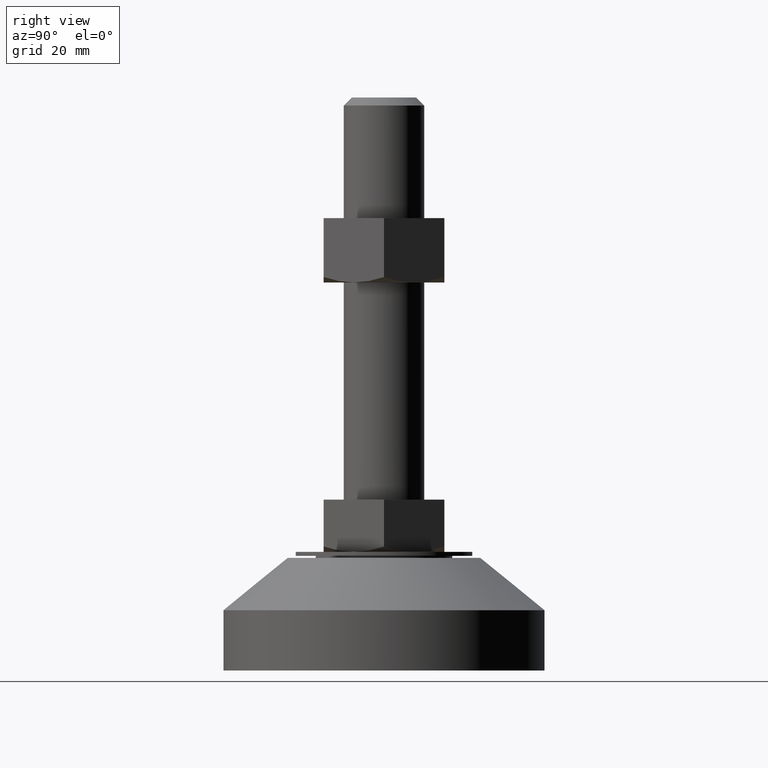
[diagram: clean part render]
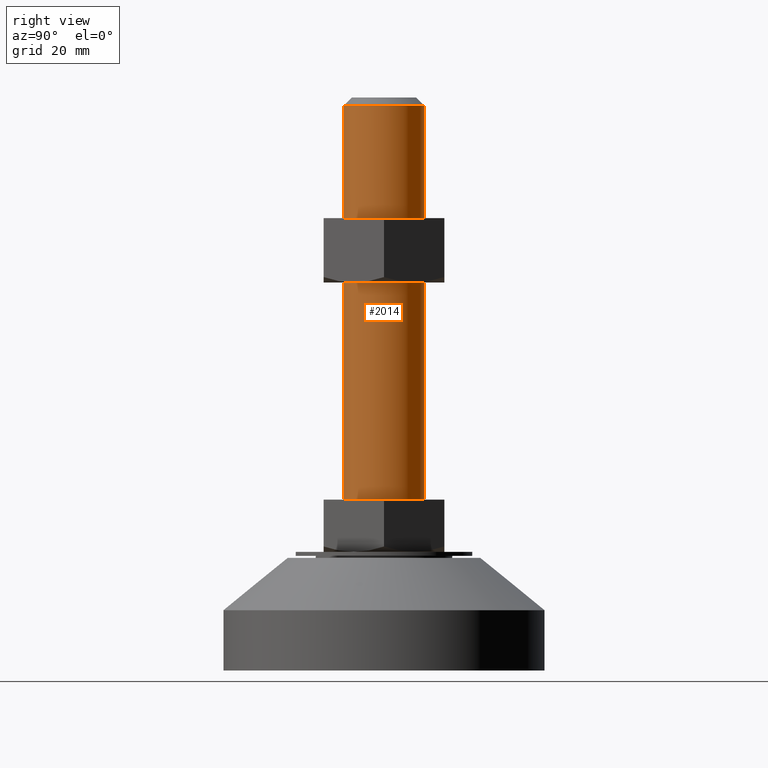
[diagram: same view with one face highlighted and labeled with its STEP entity id]
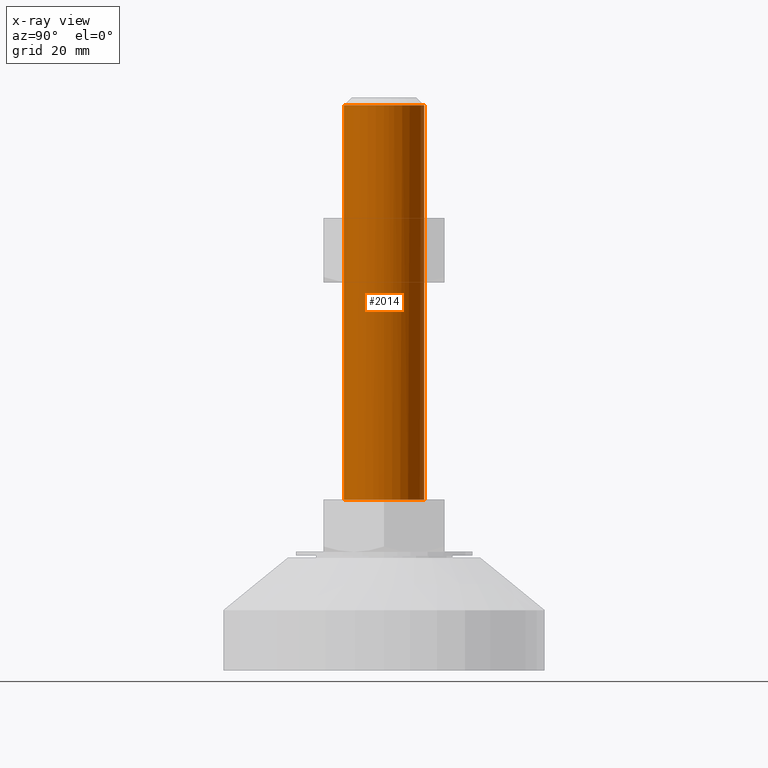
[diagram: x-ray of the same camera — body ghosted, the highlighted face saturated]
A machine part, right view. The second image highlights one B-rep face of the part: STEP entity #2014.
The next image is the same camera in x-ray: the body ghosted, the highlighted face saturated — about 0% of this face is hidden behind the body in this view.
In plain terms, the highlighted face is a freeform B-spline surface patch.
Its self-contained STEP definition (entity closure, byte-faithful):
#1631=CARTESIAN_POINT('',(0.087265355361049,9.999619230682850,140.499999999911610));
#1632=VERTEX_POINT('',#1631);
#1647=CARTESIAN_POINT('',(0.610485396043209,-9.981347984268403,140.499999999908510));
#1648=VERTEX_POINT('',#1647);
#1654=CARTESIAN_POINT('',(10.000000000000570,0.0,140.500000000000000));
#1655=VERTEX_POINT('',#1654);
#1656=CARTESIAN_POINT('',(10.000000000000570,0.0,140.500000000000000));
#1657=CARTESIAN_POINT('',(10.000000000003370,-9.407060668452559,140.499999999954210));
#1658=CARTESIAN_POINT('',(0.610485396043209,-9.981347984268403,140.499999999908540));
#1666=(BOUNDED_CURVE()B_SPLINE_CURVE(2,(#1656,#1657,#1658),.UNSPECIFIED.,.F.,.U.)B_SPLINE_CURVE_WITH_KNOTS((3,3),(0.500000000000000,0.739332962230058),.UNSPECIFIED.)CURVE()GEOMETRIC_REPRESENTATION_ITEM()RATIONAL_B_SPLINE_CURVE((1.0,0.719603993297120,0.976072041647675))REPRESENTATION_ITEM(''));
#1667=EDGE_CURVE('',#1655,#1648,#1666,.T.);
#1669=CARTESIAN_POINT('',(0.087265355361049,9.999619230682850,140.499999999911550));
#1670=CARTESIAN_POINT('',(9.999999999997780,9.913112105590999,140.499999999957340));
#1671=CARTESIAN_POINT('',(10.000000000000570,0.0,140.500000000000000));
#1679=(BOUNDED_CURVE()B_SPLINE_CURVE(2,(#1669,#1670,#1671),.UNSPECIFIED.,.F.,.U.)B_SPLINE_CURVE_WITH_KNOTS((3,3),(0.251539894341735,0.500000000000000),.UNSPECIFIED.)CURVE()GEOMETRIC_REPRESENTATION_ITEM()RATIONAL_B_SPLINE_CURVE((0.996414028084790,0.708910879628081,1.0))REPRESENTATION_ITEM(''));
#1680=EDGE_CURVE('',#1632,#1655,#1679,.T.);
#1718=CARTESIAN_POINT('',(-0.087265355361019,-9.999619230682850,140.499999999911610));
#1719=VERTEX_POINT('',#1718);
#1733=CARTESIAN_POINT('',(0.610485396043209,-9.981347984268403,140.499999999908510));
#1734=CARTESIAN_POINT('',(0.378209774889750,-9.995555270042422,140.499999999909900));
#1735=CARTESIAN_POINT('',(0.145435294395606,-10.001650923376630,140.499999999910100));
#1736=CARTESIAN_POINT('',(-0.087265355361019,-9.999619230682850,140.499999999911610));
#1737=B_SPLINE_CURVE_WITH_KNOTS('',3,(#1733,#1734,#1735,#1736),.UNSPECIFIED.,.F.,.U.,(4,4),(1.108739E-010,0.698133917028966),.UNSPECIFIED.);
#1738=EDGE_CURVE('',#1648,#1719,#1737,.T.);
#1947=CARTESIAN_POINT('',(0.087265354983754,9.999619230641850,142.950000000000100));
#1948=CARTESIAN_POINT('',(10.086884585625604,9.912353875658109,142.950000000000020));
#1949=CARTESIAN_POINT('',(9.999619230641864,-0.087265354983740,142.950000000000100));
#1950=CARTESIAN_POINT('',(9.912353875658123,-10.086884585625590,142.950000000000020));
#1951=CARTESIAN_POINT('',(-0.087265354983726,-9.999619230641850,142.950000000000100));
#1952=CARTESIAN_POINT('',(0.087265354983754,9.999619230641850,39.988750000000003));
#1953=CARTESIAN_POINT('',(10.086884585625604,9.912353875658109,39.988749999999996));
#1954=CARTESIAN_POINT('',(9.999619230641864,-0.087265354983740,39.988750000000003));
#1955=CARTESIAN_POINT('',(9.912353875658123,-10.086884585625590,39.988749999999996));
#1956=CARTESIAN_POINT('',(-0.087265354983726,-9.999619230641850,39.988750000000003));
#1964=(BOUNDED_SURFACE()B_SPLINE_SURFACE(2,1,((#1947,#1952),(#1948,#1953),(#1949,#1954),(#1950,#1955),(#1951,#1956)),.UNSPECIFIED.,.F.,.F.,.U.)B_SPLINE_SURFACE_WITH_KNOTS((3,2,3),(2,2),(0.0,16.568542494924031,33.137084989848063),(0.0,102.961250000000110),.UNSPECIFIED.)GEOMETRIC_REPRESENTATION_ITEM()RATIONAL_B_SPLINE_SURFACE(((1.0,1.0),(0.707106781186548,0.707106781186548),(1.0,1.0),(0.707106781186548,0.707106781186548),(1.0,1.0)))REPRESENTATION_ITEM('')SURFACE());
#1965=ORIENTED_EDGE('',*,*,#1680,.T.);
#1966=ORIENTED_EDGE('',*,*,#1667,.T.);
#1967=ORIENTED_EDGE('',*,*,#1738,.T.);
#1968=CARTESIAN_POINT('',(-0.087265355184743,-9.999619230640096,42.500000000000000));
#1969=VERTEX_POINT('',#1968);
#1970=CARTESIAN_POINT('',(-0.087265355361019,-9.999619230682850,140.499999999911610));
#1971=CARTESIAN_POINT('',(-0.087265355184743,-9.999619230640096,42.500000000000000));
#1972=QUASI_UNIFORM_CURVE('',1,(#1970,#1971),.UNSPECIFIED.,.F.,.U.);
#1973=EDGE_CURVE('',#1719,#1969,#1972,.T.);
#1974=ORIENTED_EDGE('',*,*,#1973,.T.);
#1975=CARTESIAN_POINT('',(10.000000000000160,0.0,42.500000000000000));
#1976=VERTEX_POINT('',#1975);
#1977=CARTESIAN_POINT('',(-0.087265355184747,-9.999619230640100,42.500000000000000));
#1978=CARTESIAN_POINT('',(-0.043633508307518,-10.000000000000140,42.500000000000000));
#1979=CARTESIAN_POINT('',(1.421085E-014,-10.000000000000140,42.500000000000000));
#1980=CARTESIAN_POINT('',(10.000000000000155,-10.000000000000140,42.500000000000000));
#1981=CARTESIAN_POINT('',(10.000000000000160,0.0,42.500000000000000));
#1989=(BOUNDED_CURVE()B_SPLINE_CURVE(2,(#1977,#1978,#1979,#1980,#1981),.UNSPECIFIED.,.F.,.U.)B_SPLINE_CURVE_WITH_KNOTS((3,2,3),(0.748460105661472,0.750000000000000,1.0),.UNSPECIFIED.)CURVE()GEOMETRIC_REPRESENTATION_ITEM()RATIONAL_B_SPLINE_CURVE((0.996414028092211,0.998195901562224,1.0,0.707106781186548,1.0))REPRESENTATION_ITEM(''));
#1990=EDGE_CURVE('',#1969,#1976,#1989,.T.);
#1991=ORIENTED_EDGE('',*,*,#1990,.T.);
#1992=CARTESIAN_POINT('',(0.087265355184772,9.999619230640096,42.500000000000000));
#1993=VERTEX_POINT('',#1992);
#1994=CARTESIAN_POINT('',(10.000000000000160,0.0,42.500000000000000));
#1995=CARTESIAN_POINT('',(10.000000000000155,9.913112105750633,42.500000000000000));
#1996=CARTESIAN_POINT('',(0.087265355184773,9.999619230640096,42.499999999999993));
#2004=(BOUNDED_CURVE()B_SPLINE_CURVE(2,(#1994,#1995,#1996),.UNSPECIFIED.,.F.,.U.)B_SPLINE_CURVE_WITH_KNOTS((3,3),(0.0,0.248460105661472),.UNSPECIFIED.)CURVE()GEOMETRIC_REPRESENTATION_ITEM()RATIONAL_B_SPLINE_CURVE((1.0,0.708910879624324,0.996414028092211))REPRESENTATION_ITEM(''));
#2005=EDGE_CURVE('',#1976,#1993,#2004,.T.);
#2006=ORIENTED_EDGE('',*,*,#2005,.T.);
#2007=CARTESIAN_POINT('',(0.087265355361049,9.999619230682850,140.499999999911610));
#2008=CARTESIAN_POINT('',(0.087265355184772,9.999619230640096,42.500000000000000));
#2009=QUASI_UNIFORM_CURVE('',1,(#2007,#2008),.UNSPECIFIED.,.F.,.U.);
#2010=EDGE_CURVE('',#1632,#1993,#2009,.T.);
#2011=ORIENTED_EDGE('',*,*,#2010,.F.);
#2012=EDGE_LOOP('',(#1965,#1966,#1967,#1974,#1991,#2006,#2011));
#2013=FACE_OUTER_BOUND('',#2012,.T.);
#2014=ADVANCED_FACE('',(#2013),#1964,.T.);